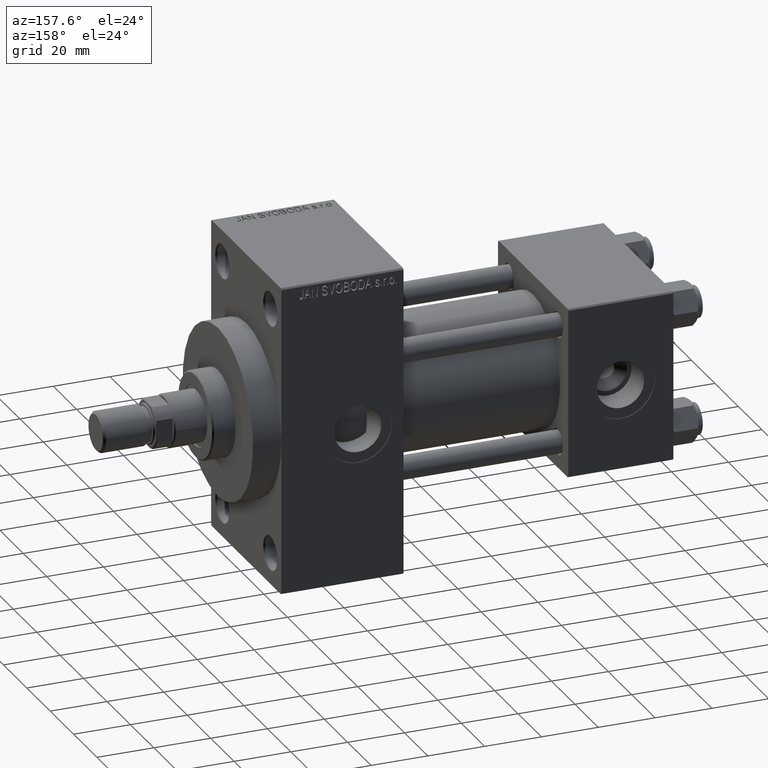
[diagram: clean part render]
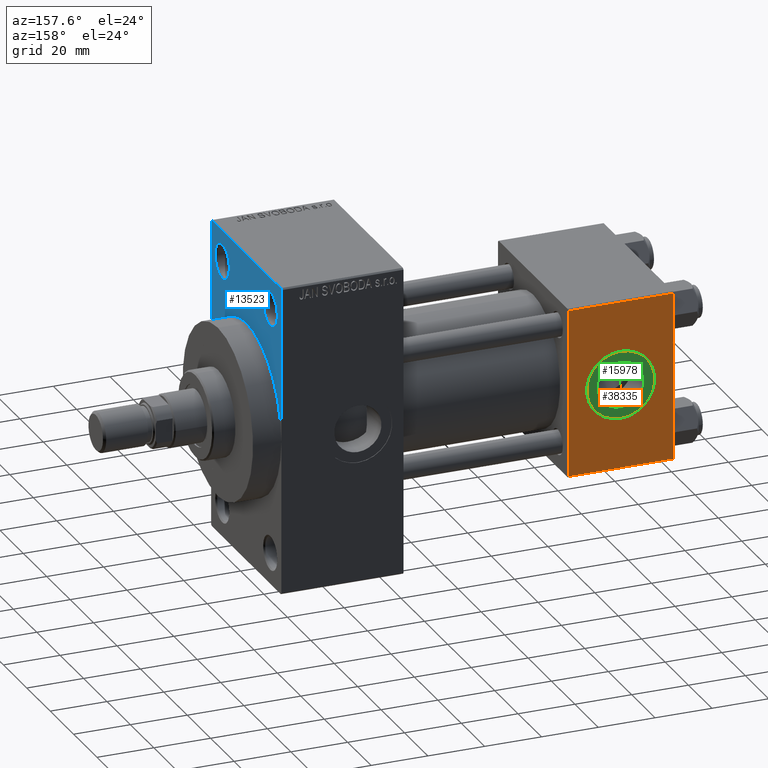
[diagram: same view with three faces highlighted in distinct colors, each labeled with its STEP entity id]
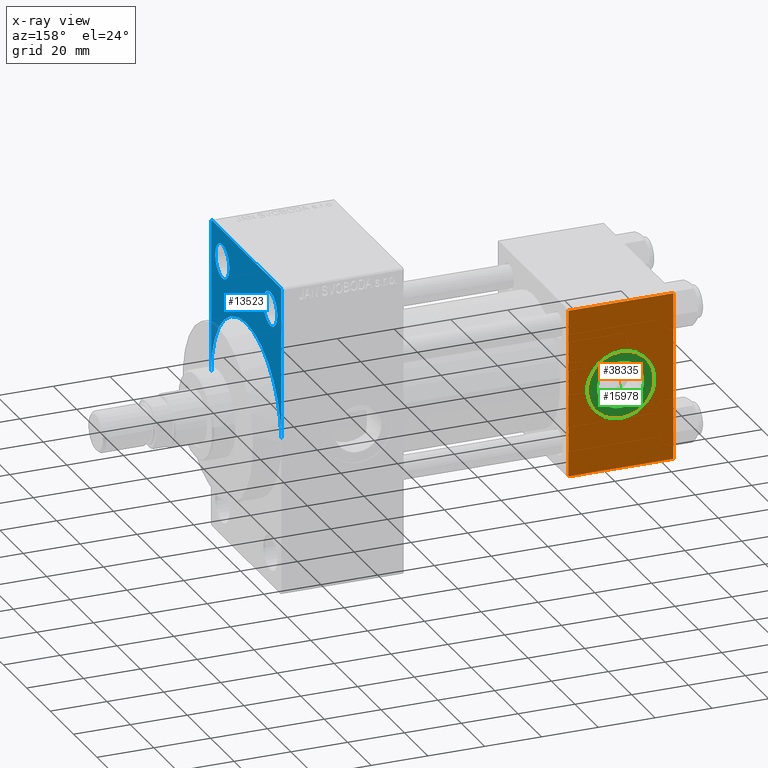
[diagram: x-ray of the same camera — body ghosted, the three highlighted faces saturated]
A machine part, auxiliary view with three faces highlighted in distinct colors.
The next image is the same camera in x-ray (body ghosted, the three faces saturated) — at least one of them is partly hidden behind the body in this view.
Their STEP definitions:

[orange] entity #38335 — the highlighted planar face has unit normal (0, 1, 0).
#1167 = PLANE ( 'NONE',  #2030 ) ;
#1988 = EDGE_CURVE ( 'NONE', #41694, #20182, #27254, .T. ) ;
#2030 = AXIS2_PLACEMENT_3D ( 'NONE', #45103, #12035, #9128 ) ;
#4077 = VERTEX_POINT ( 'NONE', #26903 ) ;
#4620 = DIRECTION ( 'NONE',  ( 0.000000000000000000, 0.000000000000000000, 1.000000000000000000 ) ) ;
#4860 = CARTESIAN_POINT ( 'NONE',  ( 18.50000000000000000, 29.99999999999999289, 12.00000000000000178 ) ) ;
#7283 = CARTESIAN_POINT ( 'NONE',  ( 37.00000000000000000, 29.99999999999999289, -29.50000000000000000 ) ) ;
#8012 = CARTESIAN_POINT ( 'NONE',  ( 18.50000000000000000, 29.99999999999999289, 0.000000000000000000 ) ) ;
#9128 = DIRECTION ( 'NONE',  ( 0.000000000000000000, -0.000000000000000000, 1.000000000000000000 ) ) ;
#9728 = CIRCLE ( 'NONE', #42877, 12.00000000000000178 ) ;
#10891 = LINE ( 'NONE', #7283, #26517 ) ;
#11169 = DIRECTION ( 'NONE',  ( 1.000000000000000000, 0.000000000000000000, 0.000000000000000000 ) ) ;
#12035 = DIRECTION ( 'NONE',  ( -0.000000000000000000, 1.000000000000000000, 0.000000000000000000 ) ) ;
#13391 = ORIENTED_EDGE ( 'NONE', *, *, #32832, .T. ) ;
#15619 = EDGE_LOOP ( 'NONE', ( #42255, #13391, #42013, #25545 ) ) ;
#19288 = FACE_BOUND ( 'NONE', #33251, .T. ) ;
#19320 = CARTESIAN_POINT ( 'NONE',  ( 18.50000000000000000, 29.99999999999999289, -12.00000000000000178 ) ) ;
#20087 = EDGE_CURVE ( 'NONE', #4077, #29914, #33129, .T. ) ;
#20182 = VERTEX_POINT ( 'NONE', #4860 ) ;
#22039 = CARTESIAN_POINT ( 'NONE',  ( 0.000000000000000000, 29.99999999999999289, 30.00000000000000000 ) ) ;
#22101 = EDGE_CURVE ( 'NONE', #4077, #27657, #29761, .T. ) ;
#24540 = DIRECTION ( 'NONE',  ( 0.000000000000000000, 0.000000000000000000, -1.000000000000000000 ) ) ;
#24670 = VECTOR ( 'NONE', #43757, 1000.000000000000000 ) ;
#25545 = ORIENTED_EDGE ( 'NONE', *, *, #22101, .T. ) ;
#25876 = DIRECTION ( 'NONE',  ( 0.000000000000000000, 1.000000000000000000, 0.000000000000000000 ) ) ;
#26401 = EDGE_CURVE ( 'NONE', #27657, #41929, #28146, .T. ) ;
#26517 = VECTOR ( 'NONE', #33107, 1000.000000000000000 ) ;
#26529 = FACE_OUTER_BOUND ( 'NONE', #15619, .T. ) ;
#26903 = CARTESIAN_POINT ( 'NONE',  ( 0.000000000000000000, 29.99999999999999289, 29.50000000000000000 ) ) ;
#27254 = CIRCLE ( 'NONE', #39587, 12.00000000000000178 ) ;
#27657 = VERTEX_POINT ( 'NONE', #31663 ) ;
#28146 = LINE ( 'NONE', #42871, #47221 ) ;
#28207 = CARTESIAN_POINT ( 'NONE',  ( 0.000000000000000000, 29.99999999999999289, -29.50000000000000000 ) ) ;
#29048 = CARTESIAN_POINT ( 'NONE',  ( 37.00000000000000000, 29.99999999999999289, 29.50000000000000000 ) ) ;
#29581 = CARTESIAN_POINT ( 'NONE',  ( 37.00000000000000000, 29.99999999999999289, -29.50000000000000000 ) ) ;
#29761 = LINE ( 'NONE', #29048, #47082 ) ;
#29914 = VERTEX_POINT ( 'NONE', #28207 ) ;
#31663 = CARTESIAN_POINT ( 'NONE',  ( 37.00000000000000000, 29.99999999999999289, 29.50000000000000000 ) ) ;
#32832 = EDGE_CURVE ( 'NONE', #41929, #29914, #10891, .T. ) ;
#33107 = DIRECTION ( 'NONE',  ( -1.000000000000000000, 0.000000000000000000, 0.000000000000000000 ) ) ;
#33129 = LINE ( 'NONE', #22039, #24670 ) ;
#33251 = EDGE_LOOP ( 'NONE', ( #35255, #41296 ) ) ;
#35255 = ORIENTED_EDGE ( 'NONE', *, *, #38505, .F. ) ;
#36161 = DIRECTION ( 'NONE',  ( 0.000000000000000000, 1.000000000000000000, 0.000000000000000000 ) ) ;
#38335 = ADVANCED_FACE ( 'NONE', ( #19288, #26529 ), #1167, .T. ) ;
#38505 = EDGE_CURVE ( 'NONE', #20182, #41694, #9728, .T. ) ;
#39587 = AXIS2_PLACEMENT_3D ( 'NONE', #8012, #25876, #4620 ) ;
#41296 = ORIENTED_EDGE ( 'NONE', *, *, #1988, .F. ) ;
#41694 = VERTEX_POINT ( 'NONE', #19320 ) ;
#41929 = VERTEX_POINT ( 'NONE', #29581 ) ;
#42013 = ORIENTED_EDGE ( 'NONE', *, *, #20087, .F. ) ;
#42255 = ORIENTED_EDGE ( 'NONE', *, *, #26401, .T. ) ;
#42871 = CARTESIAN_POINT ( 'NONE',  ( 37.00000000000000000, 29.99999999999999289, 30.00000000000000000 ) ) ;
#42877 = AXIS2_PLACEMENT_3D ( 'NONE', #46283, #36161, #46515 ) ;
#43757 = DIRECTION ( 'NONE',  ( 0.000000000000000000, 0.000000000000000000, -1.000000000000000000 ) ) ;
#45103 = CARTESIAN_POINT ( 'NONE',  ( 37.00000000000000000, 29.99999999999999289, 30.00000000000000000 ) ) ;
#46283 = CARTESIAN_POINT ( 'NONE',  ( 18.50000000000000000, 29.99999999999999289, 0.000000000000000000 ) ) ;
#46515 = DIRECTION ( 'NONE',  ( 0.000000000000000000, 0.000000000000000000, 1.000000000000000000 ) ) ;
#47082 = VECTOR ( 'NONE', #11169, 1000.000000000000000 ) ;
#47221 = VECTOR ( 'NONE', #24540, 1000.000000000000000 ) ;

[blue] entity #13523 — the highlighted planar face has unit normal (-1, 0, 0).
#89 = CIRCLE ( 'NONE', #37863, 6.000000000000088818 ) ;
#338 = EDGE_CURVE ( 'NONE', #28330, #44453, #29667, .T. ) ;
#416 = EDGE_LOOP ( 'NONE', ( #15956, #8941, #45409, #37448, #8585, #25099, #31875 ) ) ;
#774 = EDGE_LOOP ( 'NONE', ( #23578, #32121 ) ) ;
#2224 = AXIS2_PLACEMENT_3D ( 'NONE', #17564, #35436, #42903 ) ;
#2602 = LINE ( 'NONE', #17335, #41380 ) ;
#2742 = CARTESIAN_POINT ( 'NONE',  ( 138.0000000000000000, 29.99999999999999645, 54.49999999999999289 ) ) ;
#3094 = VECTOR ( 'NONE', #18575, 1000.000000000000000 ) ;
#3347 = VERTEX_POINT ( 'NONE', #35003 ) ;
#4882 = AXIS2_PLACEMENT_3D ( 'NONE', #39247, #24275, #20180 ) ;
#6199 = VERTEX_POINT ( 'NONE', #6598 ) ;
#6207 = CARTESIAN_POINT ( 'NONE',  ( 138.0000000000000000, -30.00000000000000000, 54.50000000000000000 ) ) ;
#6305 = VERTEX_POINT ( 'NONE', #37571 ) ;
#6432 = EDGE_CURVE ( 'NONE', #44453, #28330, #9673, .T. ) ;
#6598 = CARTESIAN_POINT ( 'NONE',  ( 138.0000000000000000, -20.50000000000000000, 49.50000000000008527 ) ) ;
#7094 = DIRECTION ( 'NONE',  ( 0.000000000000000000, -1.000000000000000000, 1.156482317317871478E-16 ) ) ;
#8257 = CIRCLE ( 'NONE', #11340, 30.00000000000000000 ) ;
#8585 = ORIENTED_EDGE ( 'NONE', *, *, #42706, .F. ) ;
#8941 = ORIENTED_EDGE ( 'NONE', *, *, #39305, .T. ) ;
#9673 = CIRCLE ( 'NONE', #22026, 6.000000000000088818 ) ;
#10020 = DIRECTION ( 'NONE',  ( -1.000000000000000000, 0.000000000000000000, -0.000000000000000000 ) ) ;
#10087 = DIRECTION ( 'NONE',  ( -0.000000000000000000, -0.7071067811865451302, -0.7071067811865500152 ) ) ;
#10114 = VERTEX_POINT ( 'NONE', #25975 ) ;
#11340 = AXIS2_PLACEMENT_3D ( 'NONE', #36076, #47160, #14096 ) ;
#12328 = CARTESIAN_POINT ( 'NONE',  ( 138.0000000000000000, 0.000000000000000000, 30.00000000000000000 ) ) ;
#13002 = CIRCLE ( 'NONE', #39202, 30.00000000000000000 ) ;
#13057 = VERTEX_POINT ( 'NONE', #12328 ) ;
#13491 = DIRECTION ( 'NONE',  ( 0.000000000000000000, 0.000000000000000000, 1.000000000000000000 ) ) ;
#13523 = ADVANCED_FACE ( 'NONE', ( #24324, #20721, #39048 ), #31801, .F. ) ;
#13589 = CARTESIAN_POINT ( 'NONE',  ( 138.0000000000000000, -20.50000000000000000, 43.50000000000000000 ) ) ;
#13882 = CARTESIAN_POINT ( 'NONE',  ( 138.0000000000000000, 20.50000000000000000, 43.50000000000000000 ) ) ;
#13911 = DIRECTION ( 'NONE',  ( 0.000000000000000000, 0.000000000000000000, -1.000000000000000000 ) ) ;
#13958 = CARTESIAN_POINT ( 'NONE',  ( 138.0000000000000000, -29.49999999999997513, 54.50000000000000000 ) ) ;
#14096 = DIRECTION ( 'NONE',  ( 0.000000000000000000, 0.000000000000000000, -1.000000000000000000 ) ) ;
#14136 = EDGE_CURVE ( 'NONE', #45801, #6199, #43753, .T. ) ;
#14564 = LINE ( 'NONE', #2742, #21088 ) ;
#14641 = CARTESIAN_POINT ( 'NONE',  ( 138.0000000000000000, 29.50000000000002132, 54.49999999999999289 ) ) ;
#15086 = ORIENTED_EDGE ( 'NONE', *, *, #14136, .T. ) ;
#15194 = CARTESIAN_POINT ( 'NONE',  ( 138.0000000000000000, 29.99999999999999645, 54.49999999999999289 ) ) ;
#15668 = LINE ( 'NONE', #15194, #3094 ) ;
#15956 = ORIENTED_EDGE ( 'NONE', *, *, #30636, .T. ) ;
#16167 = DIRECTION ( 'NONE',  ( -1.000000000000000000, 0.000000000000000000, -0.000000000000000000 ) ) ;
#16306 = CARTESIAN_POINT ( 'NONE',  ( 138.0000000000000000, 30.00000000000000000, 0.000000000000000000 ) ) ;
#17335 = CARTESIAN_POINT ( 'NONE',  ( 138.0000000000000000, -30.00000000000000000, 53.99999999999997158 ) ) ;
#17564 = CARTESIAN_POINT ( 'NONE',  ( 138.0000000000000000, 0.000000000000000000, 0.000000000000000000 ) ) ;
#18292 = EDGE_LOOP ( 'NONE', ( #15086, #41579 ) ) ;
#18575 = DIRECTION ( 'NONE',  ( 0.000000000000000000, 0.000000000000000000, -1.000000000000000000 ) ) ;
#19261 = EDGE_CURVE ( 'NONE', #10114, #33465, #15668, .T. ) ;
#20180 = DIRECTION ( 'NONE',  ( 0.000000000000000000, 0.000000000000000000, 1.000000000000000000 ) ) ;
#20354 = DIRECTION ( 'NONE',  ( 1.000000000000000000, 0.000000000000000000, 0.000000000000000000 ) ) ;
#20721 = FACE_BOUND ( 'NONE', #774, .T. ) ;
#21088 = VECTOR ( 'NONE', #7094, 1000.000000000000000 ) ;
#21106 = DIRECTION ( 'NONE',  ( 0.000000000000000000, -0.7071067811865279218, 0.7071067811865671127 ) ) ;
#21349 = LINE ( 'NONE', #38963, #27961 ) ;
#21689 = EDGE_CURVE ( 'NONE', #6199, #45801, #89, .T. ) ;
#22026 = AXIS2_PLACEMENT_3D ( 'NONE', #13882, #10020, #35133 ) ;
#23013 = CARTESIAN_POINT ( 'NONE',  ( 138.0000000000000000, 20.50000000000000000, 49.50000000000008527 ) ) ;
#23578 = ORIENTED_EDGE ( 'NONE', *, *, #6432, .T. ) ;
#24275 = DIRECTION ( 'NONE',  ( -1.000000000000000000, 0.000000000000000000, -0.000000000000000000 ) ) ;
#24324 = FACE_BOUND ( 'NONE', #18292, .T. ) ;
#24495 = AXIS2_PLACEMENT_3D ( 'NONE', #13589, #35561, #38942 ) ;
#24692 = CARTESIAN_POINT ( 'NONE',  ( 138.0000000000000000, 0.000000000000000000, 0.000000000000000000 ) ) ;
#25099 = ORIENTED_EDGE ( 'NONE', *, *, #19261, .F. ) ;
#25975 = CARTESIAN_POINT ( 'NONE',  ( 138.0000000000000000, 29.99999999999999645, 53.99999999999999289 ) ) ;
#26053 = EDGE_CURVE ( 'NONE', #10114, #37386, #21349, .T. ) ;
#27746 = CARTESIAN_POINT ( 'NONE',  ( 138.0000000000000000, -20.50000000000000000, 43.50000000000000000 ) ) ;
#27961 = VECTOR ( 'NONE', #21106, 1000.000000000000000 ) ;
#28330 = VERTEX_POINT ( 'NONE', #23013 ) ;
#28426 = CARTESIAN_POINT ( 'NONE',  ( 138.0000000000000000, 20.50000000000000000, 37.49999999999990763 ) ) ;
#29021 = VERTEX_POINT ( 'NONE', #13958 ) ;
#29667 = CIRCLE ( 'NONE', #4882, 6.000000000000088818 ) ;
#30636 = EDGE_CURVE ( 'NONE', #37386, #29021, #14564, .T. ) ;
#31801 = PLANE ( 'NONE',  #2224 ) ;
#31875 = ORIENTED_EDGE ( 'NONE', *, *, #26053, .T. ) ;
#32121 = ORIENTED_EDGE ( 'NONE', *, *, #338, .T. ) ;
#33465 = VERTEX_POINT ( 'NONE', #16306 ) ;
#35003 = CARTESIAN_POINT ( 'NONE',  ( 138.0000000000000000, -30.00000000000000000, 0.000000000000000000 ) ) ;
#35133 = DIRECTION ( 'NONE',  ( 0.000000000000000000, 0.000000000000000000, 1.000000000000000000 ) ) ;
#35436 = DIRECTION ( 'NONE',  ( -1.000000000000000000, 0.000000000000000000, -0.000000000000000000 ) ) ;
#35561 = DIRECTION ( 'NONE',  ( -1.000000000000000000, 0.000000000000000000, -0.000000000000000000 ) ) ;
#35789 = DIRECTION ( 'NONE',  ( 0.000000000000000000, 0.000000000000000000, -1.000000000000000000 ) ) ;
#36076 = CARTESIAN_POINT ( 'NONE',  ( 138.0000000000000000, 0.000000000000000000, 0.000000000000000000 ) ) ;
#37386 = VERTEX_POINT ( 'NONE', #14641 ) ;
#37448 = ORIENTED_EDGE ( 'NONE', *, *, #46679, .F. ) ;
#37571 = CARTESIAN_POINT ( 'NONE',  ( 138.0000000000000000, -30.00000000000000000, 53.99999999999997158 ) ) ;
#37863 = AXIS2_PLACEMENT_3D ( 'NONE', #27746, #16167, #13491 ) ;
#38942 = DIRECTION ( 'NONE',  ( 0.000000000000000000, 0.000000000000000000, 1.000000000000000000 ) ) ;
#38963 = CARTESIAN_POINT ( 'NONE',  ( 138.0000000000000000, 29.50000000000002132, 54.49999999999999289 ) ) ;
#39048 = FACE_OUTER_BOUND ( 'NONE', #416, .T. ) ;
#39202 = AXIS2_PLACEMENT_3D ( 'NONE', #24692, #20354, #35789 ) ;
#39247 = CARTESIAN_POINT ( 'NONE',  ( 138.0000000000000000, 20.50000000000000000, 43.50000000000000000 ) ) ;
#39305 = EDGE_CURVE ( 'NONE', #29021, #6305, #2602, .T. ) ;
#39734 = LINE ( 'NONE', #6207, #43775 ) ;
#41075 = EDGE_CURVE ( 'NONE', #6305, #3347, #39734, .T. ) ;
#41380 = VECTOR ( 'NONE', #10087, 1000.000000000000114 ) ;
#41579 = ORIENTED_EDGE ( 'NONE', *, *, #21689, .T. ) ;
#42706 = EDGE_CURVE ( 'NONE', #33465, #13057, #8257, .T. ) ;
#42903 = DIRECTION ( 'NONE',  ( -0.000000000000000000, 0.000000000000000000, 1.000000000000000000 ) ) ;
#43753 = CIRCLE ( 'NONE', #24495, 6.000000000000088818 ) ;
#43775 = VECTOR ( 'NONE', #13911, 1000.000000000000000 ) ;
#44453 = VERTEX_POINT ( 'NONE', #28426 ) ;
#45409 = ORIENTED_EDGE ( 'NONE', *, *, #41075, .T. ) ;
#45801 = VERTEX_POINT ( 'NONE', #45854 ) ;
#45854 = CARTESIAN_POINT ( 'NONE',  ( 138.0000000000000000, -20.50000000000000000, 37.49999999999990763 ) ) ;
#46679 = EDGE_CURVE ( 'NONE', #13057, #3347, #13002, .T. ) ;
#47160 = DIRECTION ( 'NONE',  ( 1.000000000000000000, 0.000000000000000000, 0.000000000000000000 ) ) ;

[green] entity #15978 — the highlighted planar face has unit normal (0, 1, 0).
#543 = DIRECTION ( 'NONE',  ( 0.000000000000000000, 0.000000000000000000, 1.000000000000000000 ) ) ;
#4162 = DIRECTION ( 'NONE',  ( 0.000000000000000000, 0.000000000000000000, 1.000000000000000000 ) ) ;
#5003 = DIRECTION ( 'NONE',  ( 0.000000000000000000, 1.000000000000000000, 0.000000000000000000 ) ) ;
#5479 = FACE_OUTER_BOUND ( 'NONE', #41170, .T. ) ;
#5513 = CARTESIAN_POINT ( 'NONE',  ( 18.50000000000000000, 29.79999999999999361, 8.330000000000001847 ) ) ;
#5696 = DIRECTION ( 'NONE',  ( 0.000000000000000000, 1.000000000000000000, 0.000000000000000000 ) ) ;
#10418 = EDGE_CURVE ( 'NONE', #13383, #19300, #11355, .T. ) ;
#11355 = CIRCLE ( 'NONE', #32186, 8.330000000000001847 ) ;
#13284 = AXIS2_PLACEMENT_3D ( 'NONE', #15738, #45183, #543 ) ;
#13383 = VERTEX_POINT ( 'NONE', #26760 ) ;
#15546 = AXIS2_PLACEMENT_3D ( 'NONE', #37242, #45653, #4162 ) ;
#15738 = CARTESIAN_POINT ( 'NONE',  ( 18.50000000000000000, 29.79999999999999361, 0.000000000000000000 ) ) ;
#15761 = DIRECTION ( 'NONE',  ( 0.000000000000000000, 1.000000000000000000, 0.000000000000000000 ) ) ;
#15978 = ADVANCED_FACE ( 'NONE', ( #34928, #5479 ), #31779, .T. ) ;
#17131 = VERTEX_POINT ( 'NONE', #36781 ) ;
#19300 = VERTEX_POINT ( 'NONE', #5513 ) ;
#19622 = EDGE_CURVE ( 'NONE', #41304, #17131, #20819, .T. ) ;
#19637 = ORIENTED_EDGE ( 'NONE', *, *, #19622, .T. ) ;
#19737 = DIRECTION ( 'NONE',  ( 0.000000000000000000, -0.000000000000000000, 1.000000000000000000 ) ) ;
#20819 = CIRCLE ( 'NONE', #22364, 12.00000000000000178 ) ;
#20973 = CIRCLE ( 'NONE', #15546, 8.330000000000001847 ) ;
#21255 = EDGE_CURVE ( 'NONE', #19300, #13383, #20973, .T. ) ;
#22364 = AXIS2_PLACEMENT_3D ( 'NONE', #26713, #5696, #34193 ) ;
#23229 = ORIENTED_EDGE ( 'NONE', *, *, #25331, .T. ) ;
#25331 = EDGE_CURVE ( 'NONE', #17131, #41304, #34100, .T. ) ;
#26569 = ORIENTED_EDGE ( 'NONE', *, *, #10418, .F. ) ;
#26713 = CARTESIAN_POINT ( 'NONE',  ( 18.50000000000000000, 29.79999999999999361, 0.000000000000000000 ) ) ;
#26760 = CARTESIAN_POINT ( 'NONE',  ( 18.50000000000000000, 29.79999999999999361, -8.330000000000001847 ) ) ;
#27685 = CARTESIAN_POINT ( 'NONE',  ( 18.50000000000000000, 29.79999999999999361, 0.000000000000000000 ) ) ;
#31779 = PLANE ( 'NONE',  #38445 ) ;
#32186 = AXIS2_PLACEMENT_3D ( 'NONE', #44741, #15761, #34829 ) ;
#34100 = CIRCLE ( 'NONE', #13284, 12.00000000000000178 ) ;
#34193 = DIRECTION ( 'NONE',  ( 0.000000000000000000, 0.000000000000000000, 1.000000000000000000 ) ) ;
#34829 = DIRECTION ( 'NONE',  ( 0.000000000000000000, 0.000000000000000000, 1.000000000000000000 ) ) ;
#34928 = FACE_BOUND ( 'NONE', #44113, .T. ) ;
#36781 = CARTESIAN_POINT ( 'NONE',  ( 18.50000000000000000, 29.79999999999999361, -12.00000000000000178 ) ) ;
#37242 = CARTESIAN_POINT ( 'NONE',  ( 18.50000000000000000, 29.79999999999999361, 0.000000000000000000 ) ) ;
#38445 = AXIS2_PLACEMENT_3D ( 'NONE', #27685, #5003, #19737 ) ;
#41170 = EDGE_LOOP ( 'NONE', ( #19637, #23229 ) ) ;
#41304 = VERTEX_POINT ( 'NONE', #44725 ) ;
#42194 = ORIENTED_EDGE ( 'NONE', *, *, #21255, .F. ) ;
#44113 = EDGE_LOOP ( 'NONE', ( #42194, #26569 ) ) ;
#44725 = CARTESIAN_POINT ( 'NONE',  ( 18.50000000000000000, 29.79999999999999361, 12.00000000000000178 ) ) ;
#44741 = CARTESIAN_POINT ( 'NONE',  ( 18.50000000000000000, 29.79999999999999361, 0.000000000000000000 ) ) ;
#45183 = DIRECTION ( 'NONE',  ( 0.000000000000000000, 1.000000000000000000, 0.000000000000000000 ) ) ;
#45653 = DIRECTION ( 'NONE',  ( 0.000000000000000000, 1.000000000000000000, 0.000000000000000000 ) ) ;